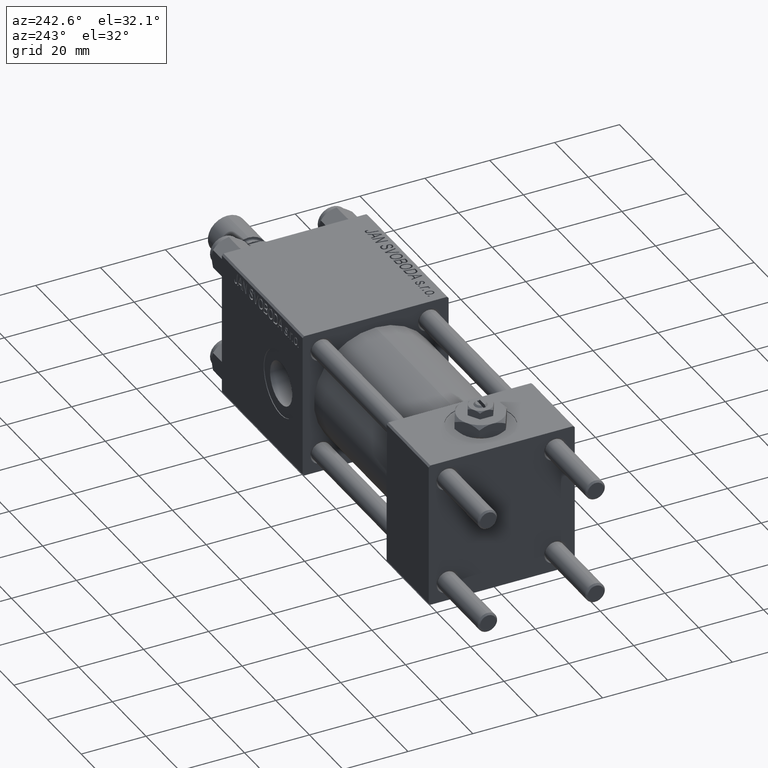
[diagram: clean part render]
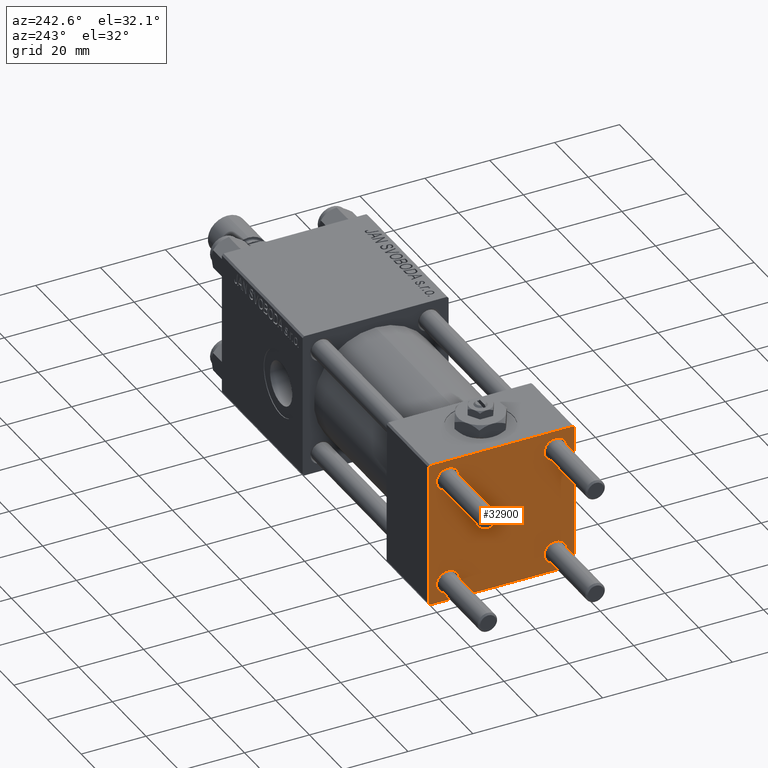
[diagram: same view with one face highlighted and labeled with its STEP entity id]
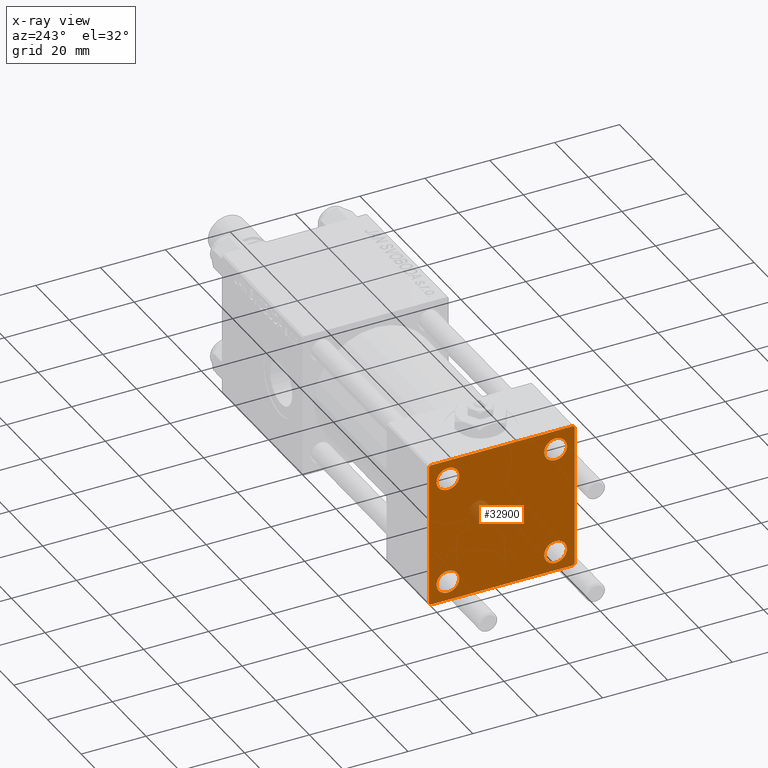
[diagram: x-ray of the same camera — body ghosted, the highlighted face saturated]
A machine part, auxiliary view. The second image highlights one B-rep face of the part: STEP entity #32900.
The next image is the same camera in x-ray: the body ghosted, the highlighted face saturated — about 3% of this face is hidden behind the body in this view.
In plain terms, the highlighted planar face has unit normal (-1, 0, 0).
Its self-contained STEP definition (entity closure, byte-faithful):
#196 = AXIS2_PLACEMENT_3D ( 'NONE', #51953, #15916, #31697 ) ;
#254 = EDGE_CURVE ( 'NONE', #27344, #43132, #48161, .T. ) ;
#628 = VERTEX_POINT ( 'NONE', #7285 ) ;
#721 = VERTEX_POINT ( 'NONE', #32536 ) ;
#1239 = ORIENTED_EDGE ( 'NONE', *, *, #46522, .T. ) ;
#1319 = DIRECTION ( 'NONE',  ( 0.000000000000000000, -1.000000000000000000, -2.312964634635742957E-16 ) ) ;
#1395 = AXIS2_PLACEMENT_3D ( 'NONE', #17900, #18164, #18424 ) ;
#1697 = CARTESIAN_POINT ( 'NONE',  ( 0.000000000000000000, -16.59999999999999076, -13.10000000000001030 ) ) ;
#1790 = VECTOR ( 'NONE', #21205, 1000.000000000000000 ) ;
#2304 = ORIENTED_EDGE ( 'NONE', *, *, #44352, .T. ) ;
#2538 = LINE ( 'NONE', #34663, #24007 ) ;
#4181 = VECTOR ( 'NONE', #1319, 1000.000000000000000 ) ;
#5112 = EDGE_CURVE ( 'NONE', #25473, #13959, #29867, .T. ) ;
#5134 = LINE ( 'NONE', #8584, #1790 ) ;
#5499 = LINE ( 'NONE', #25005, #19766 ) ;
#5511 = DIRECTION ( 'NONE',  ( 1.000000000000000000, -0.000000000000000000, 0.000000000000000000 ) ) ;
#5546 = ORIENTED_EDGE ( 'NONE', *, *, #5112, .T. ) ;
#5686 = DIRECTION ( 'NONE',  ( 1.000000000000000000, -0.000000000000000000, 0.000000000000000000 ) ) ;
#5831 = CIRCLE ( 'NONE', #20944, 3.499999999999996003 ) ;
#6524 = DIRECTION ( 'NONE',  ( -0.000000000000000000, 0.000000000000000000, 1.000000000000000000 ) ) ;
#6843 = CARTESIAN_POINT ( 'NONE',  ( 0.000000000000000000, 22.24999999999999645, 22.24999999999999645 ) ) ;
#7033 = CARTESIAN_POINT ( 'NONE',  ( 0.000000000000000000, -22.50000000000000000, -21.99999999999997158 ) ) ;
#7285 = CARTESIAN_POINT ( 'NONE',  ( 0.000000000000000000, 22.50000000000000000, -21.99999999999996803 ) ) ;
#7336 = VERTEX_POINT ( 'NONE', #33077 ) ;
#7972 = CARTESIAN_POINT ( 'NONE',  ( 0.000000000000000000, -22.25000000000014566, -22.24999999999984013 ) ) ;
#8584 = CARTESIAN_POINT ( 'NONE',  ( 0.000000000000000000, -22.50000000000000000, 22.50000000000000000 ) ) ;
#9929 = LINE ( 'NONE', #39144, #10765 ) ;
#10765 = VECTOR ( 'NONE', #30733, 999.9999999999998863 ) ;
#10904 = CARTESIAN_POINT ( 'NONE',  ( 0.000000000000000000, 22.50000000000000000, 22.50000000000000355 ) ) ;
#11001 = AXIS2_PLACEMENT_3D ( 'NONE', #32658, #48703, #34928 ) ;
#11190 = CARTESIAN_POINT ( 'NONE',  ( 0.000000000000000000, -16.59999999999999076, -16.60000000000000853 ) ) ;
#11505 = CARTESIAN_POINT ( 'NONE',  ( 0.000000000000000000, 0.000000000000000000, 0.000000000000000000 ) ) ;
#11646 = ORIENTED_EDGE ( 'NONE', *, *, #41956, .T. ) ;
#12021 = CARTESIAN_POINT ( 'NONE',  ( 0.000000000000000000, -16.59999999999999076, 16.60000000000000853 ) ) ;
#12107 = EDGE_CURVE ( 'NONE', #20180, #13657, #51677, .T. ) ;
#13657 = VERTEX_POINT ( 'NONE', #7033 ) ;
#13959 = VERTEX_POINT ( 'NONE', #19088 ) ;
#14701 = CARTESIAN_POINT ( 'NONE',  ( 0.000000000000000000, 21.99999999999999289, 22.50000000000000355 ) ) ;
#14913 = ORIENTED_EDGE ( 'NONE', *, *, #16151, .T. ) ;
#15221 = FACE_BOUND ( 'NONE', #46039, .T. ) ;
#15243 = CARTESIAN_POINT ( 'NONE',  ( 0.000000000000000000, -21.99999999999997158, -22.50000000000000711 ) ) ;
#15636 = DIRECTION ( 'NONE',  ( 0.000000000000000000, -0.7071067811865426878, 0.7071067811865524577 ) ) ;
#15741 = EDGE_CURVE ( 'NONE', #22321, #30591, #5499, .T. ) ;
#15916 = DIRECTION ( 'NONE',  ( 1.000000000000000000, -0.000000000000000000, 0.000000000000000000 ) ) ;
#16151 = EDGE_CURVE ( 'NONE', #628, #30625, #2538, .T. ) ;
#16526 = CIRCLE ( 'NONE', #1395, 3.499999999999996003 ) ;
#17291 = ORIENTED_EDGE ( 'NONE', *, *, #41119, .T. ) ;
#17484 = ORIENTED_EDGE ( 'NONE', *, *, #41658, .T. ) ;
#17900 = CARTESIAN_POINT ( 'NONE',  ( 0.000000000000000000, 16.59999999999999787, -16.60000000000000497 ) ) ;
#18164 = DIRECTION ( 'NONE',  ( 1.000000000000000000, -0.000000000000000000, 0.000000000000000000 ) ) ;
#18291 = CIRCLE ( 'NONE', #47706, 3.499999999999996003 ) ;
#18424 = DIRECTION ( 'NONE',  ( 0.000000000000000000, 0.000000000000000000, 1.000000000000000000 ) ) ;
#18813 = LINE ( 'NONE', #10904, #42064 ) ;
#18850 = VERTEX_POINT ( 'NONE', #35603 ) ;
#19074 = DIRECTION ( 'NONE',  ( 0.000000000000000000, 0.000000000000000000, -1.000000000000000000 ) ) ;
#19088 = CARTESIAN_POINT ( 'NONE',  ( 0.000000000000000000, -16.59999999999999076, 20.10000000000000853 ) ) ;
#19633 = ORIENTED_EDGE ( 'NONE', *, *, #35673, .F. ) ;
#19766 = VECTOR ( 'NONE', #41038, 1000.000000000000000 ) ;
#19901 = ORIENTED_EDGE ( 'NONE', *, *, #24522, .T. ) ;
#20060 = CARTESIAN_POINT ( 'NONE',  ( 0.000000000000000000, -16.59999999999999076, 16.60000000000000853 ) ) ;
#20180 = VERTEX_POINT ( 'NONE', #15243 ) ;
#20944 = AXIS2_PLACEMENT_3D ( 'NONE', #20060, #23242, #39286 ) ;
#21205 = DIRECTION ( 'NONE',  ( 0.000000000000000000, 0.000000000000000000, -1.000000000000000000 ) ) ;
#22321 = VERTEX_POINT ( 'NONE', #14701 ) ;
#22808 = EDGE_CURVE ( 'NONE', #47188, #721, #18291, .T. ) ;
#22909 = CARTESIAN_POINT ( 'NONE',  ( 0.000000000000000000, 16.59999999999999787, -20.10000000000000142 ) ) ;
#23242 = DIRECTION ( 'NONE',  ( 1.000000000000000000, -0.000000000000000000, 0.000000000000000000 ) ) ;
#23444 = CIRCLE ( 'NONE', #42732, 3.499999999999996003 ) ;
#24007 = VECTOR ( 'NONE', #26779, 1000.000000000000000 ) ;
#24522 = EDGE_CURVE ( 'NONE', #24727, #50680, #23444, .T. ) ;
#24662 = CARTESIAN_POINT ( 'NONE',  ( 0.000000000000000000, -21.99999999999997868, 22.50000000000000000 ) ) ;
#24727 = VERTEX_POINT ( 'NONE', #50389 ) ;
#25005 = CARTESIAN_POINT ( 'NONE',  ( 0.000000000000000000, 22.50000000000000000, 22.50000000000000355 ) ) ;
#25473 = VERTEX_POINT ( 'NONE', #35497 ) ;
#25889 = ORIENTED_EDGE ( 'NONE', *, *, #22808, .T. ) ;
#25912 = ORIENTED_EDGE ( 'NONE', *, *, #46869, .T. ) ;
#26779 = DIRECTION ( 'NONE',  ( -0.000000000000000000, -0.7071067811865426878, -0.7071067811865524577 ) ) ;
#26858 = CARTESIAN_POINT ( 'NONE',  ( 0.000000000000000000, 16.59999999999999787, 20.10000000000000142 ) ) ;
#27344 = VERTEX_POINT ( 'NONE', #42823 ) ;
#27589 = DIRECTION ( 'NONE',  ( -1.000000000000000000, 0.000000000000000000, -0.000000000000000000 ) ) ;
#28049 = ORIENTED_EDGE ( 'NONE', *, *, #12107, .T. ) ;
#28087 = DIRECTION ( 'NONE',  ( 0.000000000000000000, 0.000000000000000000, 1.000000000000000000 ) ) ;
#28175 = VECTOR ( 'NONE', #15636, 1000.000000000000000 ) ;
#28475 = LINE ( 'NONE', #36612, #4181 ) ;
#29791 = EDGE_LOOP ( 'NONE', ( #1239, #14913, #43252, #28049, #19633, #17291, #37628, #11646 ) ) ;
#29867 = CIRCLE ( 'NONE', #43272, 3.499999999999996003 ) ;
#30591 = VERTEX_POINT ( 'NONE', #24662 ) ;
#30625 = VERTEX_POINT ( 'NONE', #41470 ) ;
#30720 = CARTESIAN_POINT ( 'NONE',  ( 0.000000000000000000, 16.59999999999999787, -16.60000000000000497 ) ) ;
#30733 = DIRECTION ( 'NONE',  ( -0.000000000000000000, 0.7071067811865525687, 0.7071067811865425767 ) ) ;
#31279 = FACE_BOUND ( 'NONE', #37382, .T. ) ;
#31697 = DIRECTION ( 'NONE',  ( 0.000000000000000000, 0.000000000000000000, 1.000000000000000000 ) ) ;
#32536 = CARTESIAN_POINT ( 'NONE',  ( 0.000000000000000000, -16.59999999999999076, -20.10000000000000497 ) ) ;
#32658 = CARTESIAN_POINT ( 'NONE',  ( 0.000000000000000000, 16.59999999999999787, 16.60000000000000497 ) ) ;
#32804 = DIRECTION ( 'NONE',  ( 1.000000000000000000, -0.000000000000000000, 0.000000000000000000 ) ) ;
#32900 = ADVANCED_FACE ( 'NONE', ( #35716, #31279, #15221, #47315, #46803 ), #47833, .T. ) ;
#33077 = CARTESIAN_POINT ( 'NONE',  ( 0.000000000000000000, -22.50000000000000000, 22.00000000000000000 ) ) ;
#34222 = DIRECTION ( 'NONE',  ( 0.000000000000000000, 0.000000000000000000, 1.000000000000000000 ) ) ;
#34334 = CIRCLE ( 'NONE', #51998, 3.499999999999996003 ) ;
#34663 = CARTESIAN_POINT ( 'NONE',  ( 0.000000000000000000, 22.25000000000014566, -22.24999999999984013 ) ) ;
#34928 = DIRECTION ( 'NONE',  ( 0.000000000000000000, 0.000000000000000000, 1.000000000000000000 ) ) ;
#35497 = CARTESIAN_POINT ( 'NONE',  ( 0.000000000000000000, -16.59999999999999076, 13.10000000000001030 ) ) ;
#35603 = CARTESIAN_POINT ( 'NONE',  ( 0.000000000000000000, 22.50000000000000000, 21.99999999999999645 ) ) ;
#35673 = EDGE_CURVE ( 'NONE', #7336, #13657, #5134, .T. ) ;
#35716 = FACE_BOUND ( 'NONE', #39623, .T. ) ;
#36612 = CARTESIAN_POINT ( 'NONE',  ( 0.000000000000000000, 22.50000000000000000, -22.49999999999999645 ) ) ;
#37382 = EDGE_LOOP ( 'NONE', ( #25889, #17484 ) ) ;
#37628 = ORIENTED_EDGE ( 'NONE', *, *, #15741, .F. ) ;
#38010 = EDGE_CURVE ( 'NONE', #50680, #24727, #16526, .T. ) ;
#38957 = DIRECTION ( 'NONE',  ( 0.000000000000000000, 0.7071067811865474617, -0.7071067811865474617 ) ) ;
#39111 = DIRECTION ( 'NONE',  ( 0.000000000000000000, 0.000000000000000000, 1.000000000000000000 ) ) ;
#39144 = CARTESIAN_POINT ( 'NONE',  ( -0.000000000000000000, -22.24999999999984013, 22.25000000000015277 ) ) ;
#39286 = DIRECTION ( 'NONE',  ( 0.000000000000000000, 0.000000000000000000, 1.000000000000000000 ) ) ;
#39555 = ORIENTED_EDGE ( 'NONE', *, *, #38010, .T. ) ;
#39623 = EDGE_LOOP ( 'NONE', ( #2304, #5546 ) ) ;
#41038 = DIRECTION ( 'NONE',  ( 0.000000000000000000, -1.000000000000000000, -7.709882115452476934E-17 ) ) ;
#41119 = EDGE_CURVE ( 'NONE', #7336, #30591, #9929, .T. ) ;
#41470 = CARTESIAN_POINT ( 'NONE',  ( 0.000000000000000000, 21.99999999999999289, -22.49999999999999645 ) ) ;
#41572 = CARTESIAN_POINT ( 'NONE',  ( 0.000000000000000000, -16.59999999999999076, -16.60000000000000853 ) ) ;
#41658 = EDGE_CURVE ( 'NONE', #721, #47188, #34334, .T. ) ;
#41956 = EDGE_CURVE ( 'NONE', #22321, #18850, #42900, .T. ) ;
#42064 = VECTOR ( 'NONE', #19074, 1000.000000000000000 ) ;
#42732 = AXIS2_PLACEMENT_3D ( 'NONE', #30720, #5686, #49659 ) ;
#42806 = CIRCLE ( 'NONE', #11001, 3.499999999999996003 ) ;
#42823 = CARTESIAN_POINT ( 'NONE',  ( 0.000000000000000000, 16.59999999999999787, 13.10000000000000675 ) ) ;
#42900 = LINE ( 'NONE', #6843, #43580 ) ;
#43132 = VERTEX_POINT ( 'NONE', #26858 ) ;
#43252 = ORIENTED_EDGE ( 'NONE', *, *, #45289, .T. ) ;
#43272 = AXIS2_PLACEMENT_3D ( 'NONE', #12021, #32804, #28087 ) ;
#43580 = VECTOR ( 'NONE', #38957, 1000.000000000000114 ) ;
#44172 = EDGE_LOOP ( 'NONE', ( #25912, #45103 ) ) ;
#44352 = EDGE_CURVE ( 'NONE', #13959, #25473, #5831, .T. ) ;
#45103 = ORIENTED_EDGE ( 'NONE', *, *, #254, .T. ) ;
#45289 = EDGE_CURVE ( 'NONE', #30625, #20180, #28475, .T. ) ;
#46039 = EDGE_LOOP ( 'NONE', ( #19901, #39555 ) ) ;
#46522 = EDGE_CURVE ( 'NONE', #18850, #628, #18813, .T. ) ;
#46803 = FACE_OUTER_BOUND ( 'NONE', #29791, .T. ) ;
#46869 = EDGE_CURVE ( 'NONE', #43132, #27344, #42806, .T. ) ;
#47188 = VERTEX_POINT ( 'NONE', #1697 ) ;
#47263 = DIRECTION ( 'NONE',  ( 1.000000000000000000, -0.000000000000000000, 0.000000000000000000 ) ) ;
#47315 = FACE_BOUND ( 'NONE', #44172, .T. ) ;
#47706 = AXIS2_PLACEMENT_3D ( 'NONE', #11190, #47263, #39111 ) ;
#47833 = PLANE ( 'NONE',  #50471 ) ;
#48161 = CIRCLE ( 'NONE', #196, 3.499999999999996003 ) ;
#48703 = DIRECTION ( 'NONE',  ( 1.000000000000000000, -0.000000000000000000, 0.000000000000000000 ) ) ;
#49659 = DIRECTION ( 'NONE',  ( 0.000000000000000000, 0.000000000000000000, 1.000000000000000000 ) ) ;
#50389 = CARTESIAN_POINT ( 'NONE',  ( 0.000000000000000000, 16.59999999999999787, -13.10000000000000675 ) ) ;
#50471 = AXIS2_PLACEMENT_3D ( 'NONE', #11505, #27589, #6524 ) ;
#50680 = VERTEX_POINT ( 'NONE', #22909 ) ;
#51677 = LINE ( 'NONE', #7972, #28175 ) ;
#51953 = CARTESIAN_POINT ( 'NONE',  ( 0.000000000000000000, 16.59999999999999787, 16.60000000000000497 ) ) ;
#51998 = AXIS2_PLACEMENT_3D ( 'NONE', #41572, #5511, #34222 ) ;